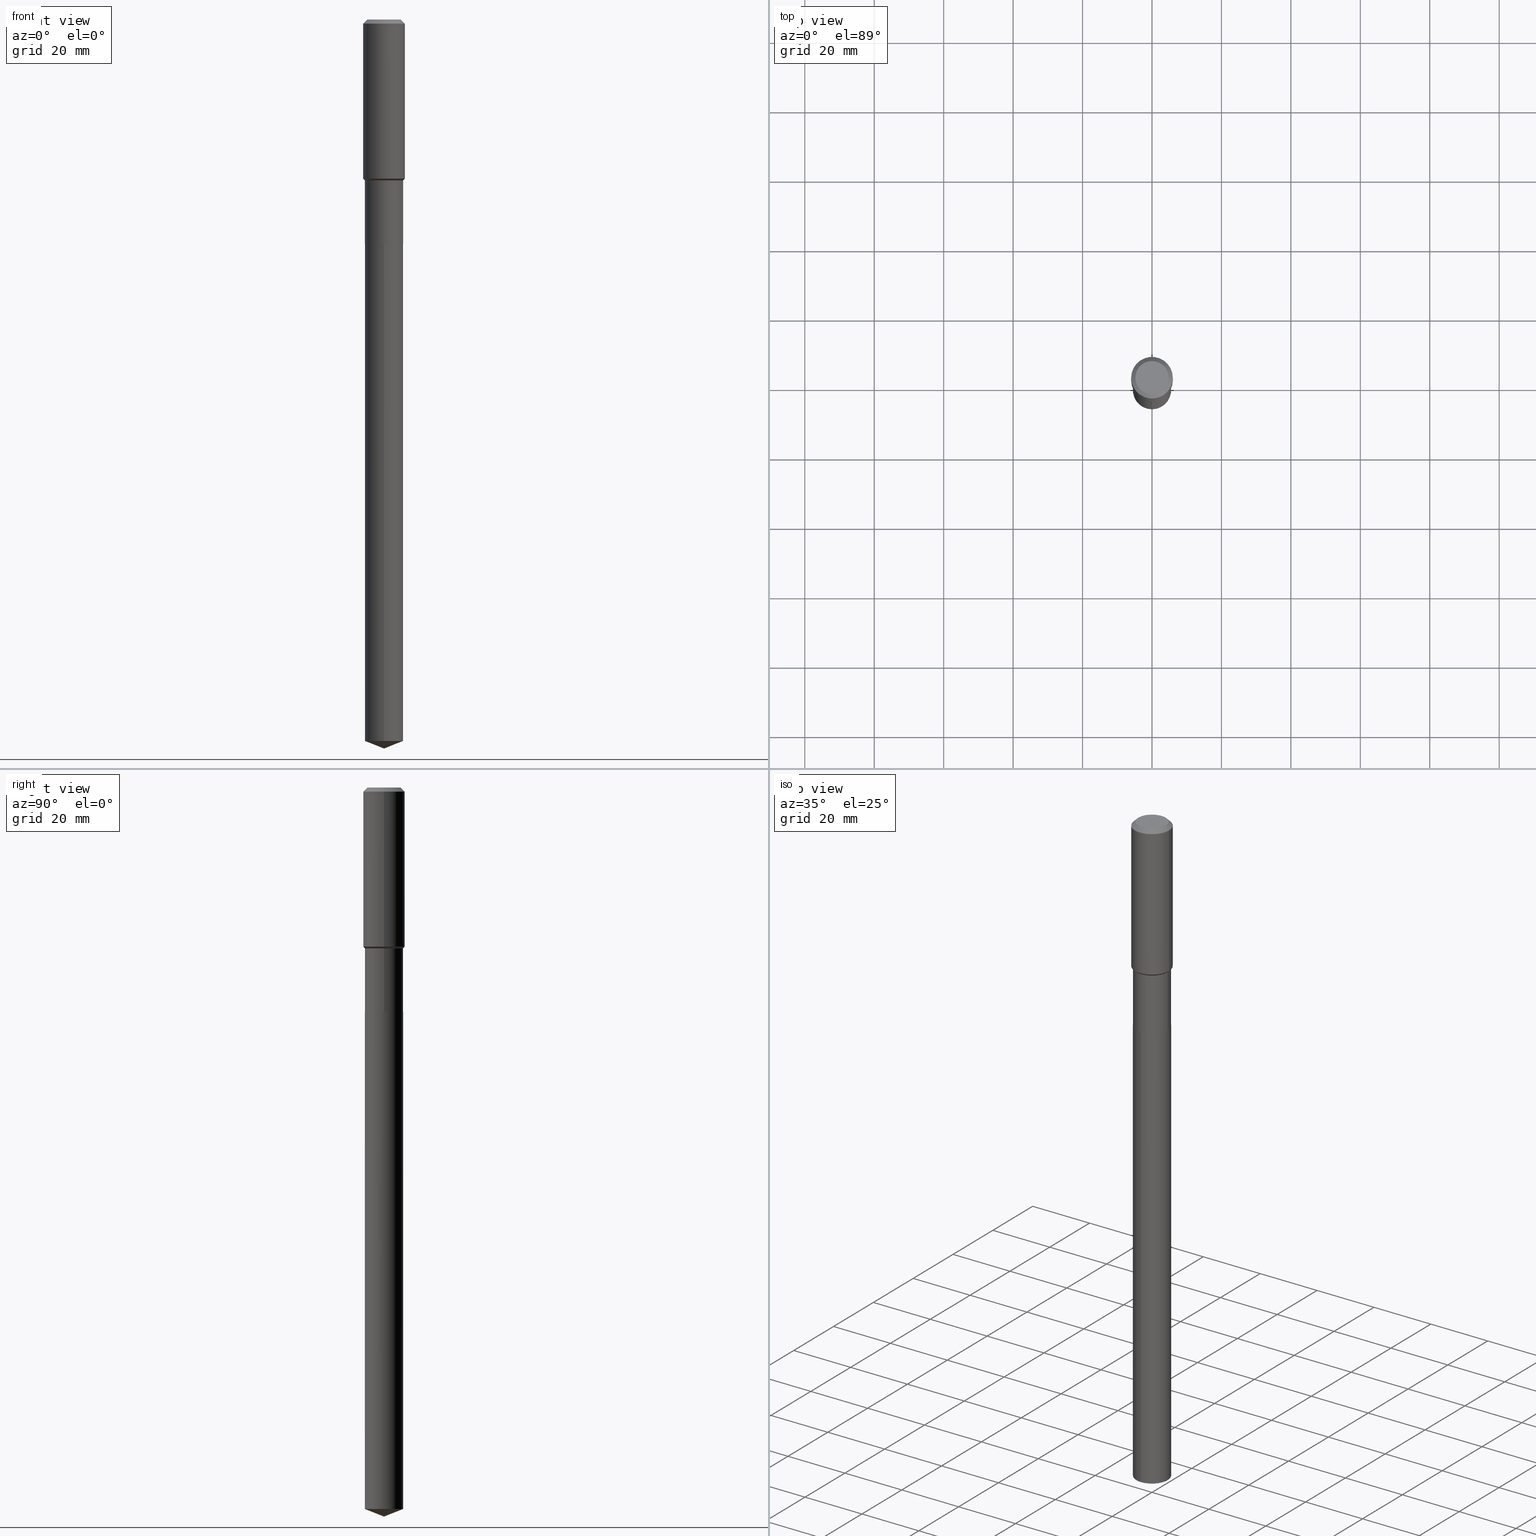
[diagram: canonical four-view strip — front | top / right | iso, engineering-drawing reading convention]
A machine part, canonical four-view strip (front | top / right | iso — engineering-drawing reading convention). The complete STEP part file that produces these views, byte-faithful:
ISO-10303-21;
HEADER;
FILE_DESCRIPTION (( 'STEP AP203' ),
    '1' );
FILE_NAME ('66789.STEP',
    '2024-04-25T06:17:26',
    ( '' ),
    ( '' ),
    'SwSTEP 2.0',
    'SolidWorks 2023',
    '' );
FILE_SCHEMA (( 'CONFIG_CONTROL_DESIGN' ));
ENDSEC;

DATA;
#1 = PERSON_AND_ORGANIZATION ( #345, #457 ) ;
#2 = CC_DESIGN_PERSON_AND_ORGANIZATION_ASSIGNMENT ( #183, #332, ( #416 ) ) ;
#3 = DIRECTION ( 'NONE',  ( -1.000000000000000000, 6.982962677686265922E-15, -4.876176775795935793E-29 ) ) ;
#4 = PERSON_AND_ORGANIZATION_ROLE ( 'classification_officer' ) ;
#5 = DIRECTION ( 'NONE',  ( 1.000000000000000000, -6.982962677686265922E-15, 4.876176775795935793E-29 ) ) ;
#6 = ADVANCED_FACE ( 'NONE', ( #219 ), #380, .T. ) ;
#7 = EDGE_CURVE ( 'NONE', #210, #172, #140, .T. ) ;
#8 = EDGE_LOOP ( 'NONE', ( #131, #297, #409, #239 ) ) ;
#9 = DATE_AND_TIME ( #198, #475 ) ;
#10 = DIRECTION ( 'NONE',  ( 0.7071067811864267805, -2.468850131080992517E-15, 0.7071067811866682540 ) ) ;
#11 = ORIENTED_EDGE ( 'NONE', *, *, #49, .F. ) ;
#12 = ORIENTED_EDGE ( 'NONE', *, *, #123, .F. ) ;
#13 = CARTESIAN_POINT ( 'NONE',  ( 1.155239464041865331E-30, -1.649375784469511612E-16, -0.04724000000000027483 ) ) ;
#14 = AXIS2_PLACEMENT_3D ( 'NONE', #22, #96, #348 ) ;
#15 = ORIENTED_EDGE ( 'NONE', *, *, #47, .T. ) ;
#16 = CARTESIAN_POINT ( 'NONE',  ( 4.462980571287875634E-29, -6.371953443388742039E-15, -1.825000000000000400 ) ) ;
#17 = PRODUCT_DEFINITION ( 'UNKNOWN', '', #416, #414 ) ;
#18 = DIRECTION ( 'NONE',  ( -2.445468806185136597E-29, 3.491481338843145583E-15, 1.000000000000000000 ) ) ;
#19 = ORIENTED_EDGE ( 'NONE', *, *, #65, .F. ) ;
#20 = FACE_OUTER_BOUND ( 'NONE', #8, .T. ) ;
#21 = ORIENTED_EDGE ( 'NONE', *, *, #240, .T. ) ;
#22 = CARTESIAN_POINT ( 'NONE',  ( 6.210757127068392441E-29, -8.867315156259937848E-15, -2.539700000000000291 ) ) ;
#23 = EDGE_CURVE ( 'NONE', #147, #55, #279, .T. ) ;
#24 = CIRCLE ( 'NONE', #377, 0.2165500000000000203 ) ;
#25 = LINE ( 'NONE', #221, #349 ) ;
#26 = CARTESIAN_POINT ( 'NONE',  ( -0.1889600000000000168, 1.401969416799070942E-15, 3.855188123706346622E-18 ) ) ;
#27 = DIRECTION ( 'NONE',  ( 1.000000000000000000, -6.982962677686266711E-15, 4.876176775795935793E-29 ) ) ;
#28 = DATE_TIME_ROLE ( 'creation_date' ) ;
#29 = CARTESIAN_POINT ( 'NONE',  ( 2.021924153099298608E-28, -2.886741752047122652E-14, -8.268000000000000682 ) ) ;
#30 = DIRECTION ( 'NONE',  ( -2.445468806185136597E-29, 3.491481338843145583E-15, 1.000000000000000000 ) ) ;
#31 = DATE_AND_TIME ( #374, #143 ) ;
#32 = CONICAL_SURFACE ( 'NONE', #440, 99.94676754583946376, 1.195550537616117737 ) ;
#33 = DIRECTION ( 'NONE',  ( 6.611014441532063434E-15, 0.9304175679820264611, 0.3665012267242921395 ) ) ;
#34 = VECTOR ( 'NONE', #58, 39.37007874015748143 ) ;
#35 = FACE_OUTER_BOUND ( 'NONE', #392, .T. ) ;
#36 = COORDINATED_UNIVERSAL_TIME_OFFSET ( 5, 0, .BEHIND. ) ;
#37 = FACE_OUTER_BOUND ( 'NONE', #454, .T. ) ;
#38 = PRODUCT ( '66789', '66789', '', ( #132 ) ) ;
#39 = CARTESIAN_POINT ( 'NONE',  ( 6.210757127068392441E-29, -8.867315156259937848E-15, -2.539700000000000291 ) ) ;
#40 = CARTESIAN_POINT ( 'NONE',  ( 0.2165500000000000203, -1.037772998344347638E-14, -2.539200000000000124 ) ) ;
#41 = FACE_OUTER_BOUND ( 'NONE', #464, .T. ) ;
#42 = PRODUCT_RELATED_PRODUCT_CATEGORY ( 'detail', '', ( #38 ) ) ;
#43 = CIRCLE ( 'NONE', #318, 0.2361999999999999933 ) ;
#44 = DIRECTION ( 'NONE',  ( 1.000000000000000000, -6.982962677686264344E-15, 0.000000000000000000 ) ) ;
#45 = CARTESIAN_POINT ( 'NONE',  ( 0.000000000000000000, 0.000000000000000000, 0.000000000000000000 ) ) ;
#46 = VERTEX_POINT ( 'NONE', #337 ) ;
#47 = EDGE_CURVE ( 'NONE', #147, #153, #363, .T. ) ;
#48 = ADVANCED_FACE ( 'NONE', ( #179 ), #334, .F. ) ;
#49 = EDGE_CURVE ( 'NONE', #172, #46, #73, .T. ) ;
#50 = FACE_OUTER_BOUND ( 'NONE', #134, .T. ) ;
#51 = EDGE_LOOP ( 'NONE', ( #326, #141, #102, #157 ) ) ;
#52 = CYLINDRICAL_SURFACE ( 'NONE', #180, 0.2165500000000000203 ) ;
#53 = CC_DESIGN_PERSON_AND_ORGANIZATION_ASSIGNMENT ( #282, #428, ( #38 ) ) ;
#54 = APPROVAL_PERSON_ORGANIZATION ( #261, #86, #224 ) ;
#55 = VERTEX_POINT ( 'NONE', #26 ) ;
#56 = LENGTH_MEASURE_WITH_UNIT ( LENGTH_MEASURE( 0.02539999999999999897 ), #214 );
#57 = VECTOR ( 'NONE', #10, 39.37007874015748143 ) ;
#58 = DIRECTION ( 'NONE',  ( -2.445481490809803865E-29, 3.491463173738657521E-15, 1.000000000000000000 ) ) ;
#59 = LOCAL_TIME ( 2, 17, 26.00000000000000000, #404 ) ;
#60 = ORIENTED_EDGE ( 'NONE', *, *, #342, .T. ) ;
#61 = CARTESIAN_POINT ( 'NONE',  ( -1.512160567852760255E-15, -0.2165500000000285252, -8.182698686505583296 ) ) ;
#62 = ORIENTED_EDGE ( 'NONE', *, *, #342, .F. ) ;
#63 = EDGE_CURVE ( 'NONE', #425, #320, #149, .T. ) ;
#64 = DIRECTION ( 'NONE',  ( -2.445468806185136597E-29, 3.491481338843145583E-15, 1.000000000000000000 ) ) ;
#65 = EDGE_CURVE ( 'NONE', #482, #139, #478, .T. ) ;
#66 = CARTESIAN_POINT ( 'NONE',  ( 6.210757127068392441E-29, -8.867315156259937848E-15, -2.539700000000000291 ) ) ;
#67 = CARTESIAN_POINT ( 'NONE',  ( 6.210757127068392441E-29, -8.867315156259937848E-15, -2.539700000000000291 ) ) ;
#68 = AXIS2_PLACEMENT_3D ( 'NONE', #360, #481, #27 ) ;
#69 = AXIS2_PLACEMENT_3D ( 'NONE', #369, #300, #3 ) ;
#70 = CARTESIAN_POINT ( 'NONE',  ( 0.2165499999999999647, -1.512160567852960823E-15, 1.055936080798609895E-29 ) ) ;
#71 = APPLICATION_CONTEXT ( 'configuration controlled 3d designs of mechanical parts and assemblies' ) ;
#72 = EDGE_CURVE ( 'NONE', #139, #467, #174, .T. ) ;
#73 = LINE ( 'NONE', #357, #423 ) ;
#74 = PERSON_AND_ORGANIZATION ( #345, #457 ) ;
#75 = CARTESIAN_POINT ( 'NONE',  ( -7.605959009990549560E-28, 1.085917164140639902E-13, 31.10207874015748430 ) ) ;
#76 = CALENDAR_DATE ( 2024, 25, 4 ) ;
#77 = AXIS2_PLACEMENT_3D ( 'NONE', #451, #92, #112 ) ;
#78 = DIRECTION ( 'NONE',  ( -0.7071067811864267805, 7.493145998869918709E-15, 0.7071067811866682540 ) ) ;
#79 = CARTESIAN_POINT ( 'NONE',  ( -0.2361999999999999933, 1.484438206022545019E-15, -0.04724000000000027483 ) ) ;
#80 = DIRECTION ( 'NONE',  ( -6.982962677686265133E-15, -1.000000000000000000, 5.046128826902356247E-15 ) ) ;
#81 = COORDINATED_UNIVERSAL_TIME_OFFSET ( 5, 0, .BEHIND. ) ;
#82 = DIRECTION ( 'NONE',  ( -2.445468806185136597E-29, 3.491481338843145583E-15, 1.000000000000000000 ) ) ;
#83 = VERTEX_POINT ( 'NONE', #328 ) ;
#84 = LOCAL_TIME ( 2, 17, 26.00000000000000000, #36 ) ;
#85 = AXIS2_PLACEMENT_3D ( 'NONE', #379, #315, #272 ) ;
#86 = APPROVAL ( #217, 'UNSPECIFIED' ) ;
#87 = LINE ( 'NONE', #133, #57 ) ;
#88 = ORIENTED_EDGE ( 'NONE', *, *, #170, .F. ) ;
#89 = VECTOR ( 'NONE', #230, 39.37007874015748143 ) ;
#90 = DIRECTION ( 'NONE',  ( -1.000000000000000000, 6.982962677686266711E-15, 0.000000000000000000 ) ) ;
#91 = ORIENTED_EDGE ( 'NONE', *, *, #234, .T. ) ;
#92 = DIRECTION ( 'NONE',  ( -2.445468806185136597E-29, 3.491481338843145583E-15, 1.000000000000000000 ) ) ;
#93 = ADVANCED_FACE ( 'NONE', ( #37 ), #237, .T. ) ;
#94 = CARTESIAN_POINT ( 'NONE',  ( -7.605959009990549560E-28, 1.085917164140639902E-13, 31.10207874015748430 ) ) ;
#95 = ORIENTED_EDGE ( 'NONE', *, *, #160, .F. ) ;
#96 = DIRECTION ( 'NONE',  ( -2.445481490809804145E-29, 3.491463173738657521E-15, 1.000000000000000000 ) ) ;
#97 = ORIENTED_EDGE ( 'NONE', *, *, #391, .T. ) ;
#98 = CIRCLE ( 'NONE', #205, 0.2165500000000000203 ) ;
#99 = DIRECTION ( 'NONE',  ( 1.000000000000000000, -6.982962677686267499E-15, 0.000000000000000000 ) ) ;
#100 = EDGE_LOOP ( 'NONE', ( #476, #88, #97, #354 ) ) ;
#101 =( CONVERSION_BASED_UNIT ( 'INCH', #56 ) LENGTH_UNIT ( ) NAMED_UNIT ( #427 ) );
#102 = ORIENTED_EDGE ( 'NONE', *, *, #489, .F. ) ;
#103 = DIRECTION ( 'NONE',  ( -6.497071151882115892E-15, -0.9304175679820240186, 0.3665012267242986899 ) ) ;
#104 = EDGE_CURVE ( 'NONE', #139, #46, #296, .T. ) ;
#105 = AXIS2_PLACEMENT_3D ( 'NONE', #155, #375, #313 ) ;
#106 = CIRCLE ( 'NONE', #388, 0.2165500000000000203 ) ;
#107 = DIRECTION ( 'NONE',  ( -0.7071067811865500152, 7.493145998870363626E-15, 0.7071067811865450192 ) ) ;
#108 = CALENDAR_DATE ( 2024, 25, 4 ) ;
#109 = DIRECTION ( 'NONE',  ( 1.000000000000000000, -6.982962677686266711E-15, 4.876185090822587894E-29 ) ) ;
#110 = LINE ( 'NONE', #303, #356 ) ;
#111 = PERSON_AND_ORGANIZATION ( #345, #457 ) ;
#112 = DIRECTION ( 'NONE',  ( 1.000000000000000000, -6.982962677686266711E-15, 4.876176775795935793E-29 ) ) ;
#113 = CARTESIAN_POINT ( 'NONE',  ( -9.427742298522546243E-47, 1.346031739168365344E-32, 3.855188123715862256E-18 ) ) ;
#114 = CC_DESIGN_DATE_AND_TIME_ASSIGNMENT ( #442, #370, ( #173 ) ) ;
#115 = FACE_OUTER_BOUND ( 'NONE', #402, .T. ) ;
#116 = ORIENTED_EDGE ( 'NONE', *, *, #72, .F. ) ;
#117 = CYLINDRICAL_SURFACE ( 'NONE', #244, 0.2165499999999999647 ) ;
#118 = ORIENTED_EDGE ( 'NONE', *, *, #276, .F. ) ;
#119 = AXIS2_PLACEMENT_3D ( 'NONE', #471, #466, #99 ) ;
#120 = DIRECTION ( 'NONE',  ( 1.000000000000000000, -6.982962677686266711E-15, 4.876176775795936353E-29 ) ) ;
#121 = DIRECTION ( 'NONE',  ( 1.000000000000000000, -6.982962677686266711E-15, 4.876185090822587894E-29 ) ) ;
#122 = AXIS2_PLACEMENT_3D ( 'NONE', #252, #472, #398 ) ;
#123 = EDGE_CURVE ( 'NONE', #83, #470, #110, .T. ) ;
#124 = CARTESIAN_POINT ( 'NONE',  ( -0.2165499999999999647, 1.538680294288496702E-15, -1.065195393794699783E-29 ) ) ;
#125 = ORIENTED_EDGE ( 'NONE', *, *, #225, .F. ) ;
#126 = DIRECTION ( 'NONE',  ( -6.982962677686265133E-15, -1.000000000000000000, 2.523064413451178124E-15 ) ) ;
#127 = EDGE_LOOP ( 'NONE', ( #250, #194 ) ) ;
#128 = CIRCLE ( 'NONE', #400, 0.2160500000000000198 ) ;
#129 = CC_DESIGN_PERSON_AND_ORGANIZATION_ASSIGNMENT ( #444, #483, ( #416 ) ) ;
#130 = DIRECTION ( 'NONE',  ( -2.445481490809804145E-29, 3.491463173738657521E-15, 1.000000000000000000 ) ) ;
#131 = ORIENTED_EDGE ( 'NONE', *, *, #322, .F. ) ;
#132 = MECHANICAL_CONTEXT ( 'NONE', #262, 'mechanical' ) ;
#133 = CARTESIAN_POINT ( 'NONE',  ( 0.2160500000000000198, -1.037598424277405566E-14, -2.539700000000000291 ) ) ;
#134 = EDGE_LOOP ( 'NONE', ( #309, #287, #197, #11 ) ) ;
#135 = ADVANCED_FACE ( 'NONE', ( #263 ), #417, .T. ) ;
#136 = EDGE_LOOP ( 'NONE', ( #62, #376, #397 ) ) ;
#137 = AXIS2_PLACEMENT_3D ( 'NONE', #308, #232, #121 ) ;
#138 = FACE_OUTER_BOUND ( 'NONE', #127, .T. ) ;
#139 = VERTEX_POINT ( 'NONE', #216 ) ;
#140 = LINE ( 'NONE', #70, #456 ) ;
#141 = ORIENTED_EDGE ( 'NONE', *, *, #322, .T. ) ;
#142 = CARTESIAN_POINT ( 'NONE',  ( 0.2361999999999999933, -1.814313362916447440E-15, -0.04724000000000027483 ) ) ;
#143 = LOCAL_TIME ( 2, 17, 26.00000000000000000, #407 ) ;
#144 = ORIENTED_EDGE ( 'NONE', *, *, #23, .T. ) ;
#145 = DIRECTION ( 'NONE',  ( -2.445468806185136597E-29, 3.491481338843145583E-15, 1.000000000000000000 ) ) ;
#146 = CARTESIAN_POINT ( 'NONE',  ( 6.210757127068392441E-29, -8.867315156259937848E-15, -2.539700000000000291 ) ) ;
#147 = VERTEX_POINT ( 'NONE', #448 ) ;
#148 = ADVANCED_FACE ( 'NONE', ( #222 ), #366, .T. ) ;
#149 = LINE ( 'NONE', #182, #187 ) ;
#150 = AXIS2_PLACEMENT_3D ( 'NONE', #75, #253, #401 ) ;
#151 = EDGE_CURVE ( 'NONE', #153, #467, #449, .T. ) ;
#152 = DIRECTION ( 'NONE',  ( -2.445468806185136597E-29, 3.491481338843145583E-15, 1.000000000000000000 ) ) ;
#153 = VERTEX_POINT ( 'NONE', #142 ) ;
#154 = CIRCLE ( 'NONE', #431, 0.2160500000000000198 ) ;
#155 = CARTESIAN_POINT ( 'NONE',  ( 4.462980571287875634E-29, -6.371953443388742039E-15, -1.825000000000000400 ) ) ;
#156 = CIRCLE ( 'NONE', #14, 0.2165500000000000203 ) ;
#157 = ORIENTED_EDGE ( 'NONE', *, *, #331, .F. ) ;
#158 = ADVANCED_FACE ( 'NONE', ( #35 ), #490, .F. ) ;
#159 = DIRECTION ( 'NONE',  ( -2.445481490809804145E-29, 3.491463173738657521E-15, 1.000000000000000000 ) ) ;
#160 = EDGE_CURVE ( 'NONE', #172, #482, #226, .T. ) ;
#161 = ORIENTED_EDGE ( 'NONE', *, *, #445, .F. ) ;
#162 = CARTESIAN_POINT ( 'NONE',  ( 2.001060596758183764E-28, -2.856963725964980633E-14, -8.182698686505585073 ) ) ;
#163 = ORIENTED_EDGE ( 'NONE', *, *, #234, .F. ) ;
#164 = AXIS2_PLACEMENT_3D ( 'NONE', #248, #167, #438 ) ;
#165 =( NAMED_UNIT ( * ) PLANE_ANGLE_UNIT ( ) SI_UNIT ( $, .RADIAN. ) );
#166 = EDGE_LOOP ( 'NONE', ( #21, #246, #95, #384 ) ) ;
#167 = DIRECTION ( 'NONE',  ( -2.445468806185136597E-29, 3.491481338843145583E-15, 1.000000000000000000 ) ) ;
#168 = EDGE_LOOP ( 'NONE', ( #12, #60, #125 ) ) ;
#169 = DIRECTION ( 'NONE',  ( -6.982962677686265133E-15, -1.000000000000000000, 2.523064413451178124E-15 ) ) ;
#170 = EDGE_CURVE ( 'NONE', #55, #147, #254, .T. ) ;
#171 = FACE_OUTER_BOUND ( 'NONE', #168, .T. ) ;
#172 = VERTEX_POINT ( 'NONE', #193 ) ;
#173 = SECURITY_CLASSIFICATION ( '', '', #299 ) ;
#174 = LINE ( 'NONE', #443, #340 ) ;
#175 = APPLICATION_PROTOCOL_DEFINITION ( 'international standard', 'config_control_design', 1994, #262 ) ;
#176 = CARTESIAN_POINT ( 'NONE',  ( 1.155239464041865331E-30, -1.649375784469511612E-16, -0.04724000000000027483 ) ) ;
#177 = UNCERTAINTY_MEASURE_WITH_UNIT (LENGTH_MEASURE( 1.000000000000000082E-05 ), #101, 'distance_accuracy_value', 'NONE');
#178 = APPROVAL_DATE_TIME ( #361, #86 ) ;
#179 = FACE_OUTER_BOUND ( 'NONE', #281, .T. ) ;
#180 = AXIS2_PLACEMENT_3D ( 'NONE', #201, #447, #266 ) ;
#181 = CLOSED_SHELL ( 'NONE', ( #6, #259, #148, #264, #415, #364, #93, #371, #184, #48, #158, #399 ) ) ;
#182 = CARTESIAN_POINT ( 'NONE',  ( -0.2160500000000000198, -7.332187575650240861E-15, -2.539700000000000291 ) ) ;
#183 = PERSON_AND_ORGANIZATION ( #345, #457 ) ;
#184 = ADVANCED_FACE ( 'NONE', ( #275 ), #439, .T. ) ;
#185 = DIRECTION ( 'NONE',  ( -2.438088387897960049E-29, 3.491481338843145188E-15, 1.000000000000000000 ) ) ;
#186 = LINE ( 'NONE', #124, #265 ) ;
#187 = VECTOR ( 'NONE', #78, 39.37007874015748143 ) ;
#188 = LINE ( 'NONE', #79, #389 ) ;
#189 = AXIS2_PLACEMENT_3D ( 'NONE', #343, #469, #90 ) ;
#190 = DIRECTION ( 'NONE',  ( -2.445468806185136597E-29, 3.491481338843145583E-15, 1.000000000000000000 ) ) ;
#191 = FACE_OUTER_BOUND ( 'NONE', #249, .T. ) ;
#192 = AXIS2_PLACEMENT_3D ( 'NONE', #66, #145, #302 ) ;
#193 = CARTESIAN_POINT ( 'NONE',  ( 0.2165499999999999092, -7.884114011241702862E-15, -1.825000000000000400 ) ) ;
#194 = ORIENTED_EDGE ( 'NONE', *, *, #310, .T. ) ;
#195 = CC_DESIGN_DATE_AND_TIME_ASSIGNMENT ( #413, #28, ( #17 ) ) ;
#196 = CARTESIAN_POINT ( 'NONE',  ( 6.210757127068392441E-29, -8.867315156259937848E-15, -2.539700000000000291 ) ) ;
#197 = ORIENTED_EDGE ( 'NONE', *, *, #459, .F. ) ;
#198 = CALENDAR_DATE ( 2024, 25, 4 ) ;
#199 = LINE ( 'NONE', #346, #34 ) ;
#200 = ORIENTED_EDGE ( 'NONE', *, *, #453, .F. ) ;
#201 = CARTESIAN_POINT ( 'NONE',  ( 6.210757127068392441E-29, -8.867315156259937848E-15, -2.539700000000000291 ) ) ;
#202 = AXIS2_PLACEMENT_3D ( 'NONE', #435, #291, #169 ) ;
#203 = VECTOR ( 'NONE', #107, 39.37007874015748143 ) ;
#204 = EDGE_LOOP ( 'NONE', ( #479, #341, #269, #163 ) ) ;
#205 = AXIS2_PLACEMENT_3D ( 'NONE', #162, #130, #316 ) ;
#206 = FACE_OUTER_BOUND ( 'NONE', #166, .T. ) ;
#207 = ORIENTED_EDGE ( 'NONE', *, *, #170, .T. ) ;
#208 = DIRECTION ( 'NONE',  ( 1.000000000000000000, -6.982962677686266711E-15, 0.000000000000000000 ) ) ;
#209 = EDGE_CURVE ( 'NONE', #320, #482, #186, .T. ) ;
#210 = VERTEX_POINT ( 'NONE', #40 ) ;
#211 = CARTESIAN_POINT ( 'NONE',  ( 6.210757127068392441E-29, -8.867315156259937848E-15, -2.539700000000000291 ) ) ;
#212 = DIRECTION ( 'NONE',  ( -2.445468806185136877E-29, 3.491481338843145188E-15, 1.000000000000000000 ) ) ;
#213 = CIRCLE ( 'NONE', #227, 0.2165500000000000203 ) ;
#214 =( LENGTH_UNIT ( ) NAMED_UNIT ( * ) SI_UNIT ( $, .METRE. ) );
#215 = CC_DESIGN_SECURITY_CLASSIFICATION ( #173, ( #416 ) ) ;
#216 = CARTESIAN_POINT ( 'NONE',  ( -0.2362000000000002153, -4.625043893215115427E-15, -1.805350000000000232 ) ) ;
#217 = APPROVAL_STATUS ( 'not_yet_approved' ) ;
#218 = ADVANCED_BREP_SHAPE_REPRESENTATION ( '66789', ( #410, #236, #487 ), #298 ) ;
#219 = FACE_OUTER_BOUND ( 'NONE', #393, .T. ) ;
#220 = APPROVAL_ROLE ( '' ) ;
#221 = CARTESIAN_POINT ( 'NONE',  ( -1.512160567852898700E-15, -0.2165500000000088743, -2.539699999999999847 ) ) ;
#222 = FACE_OUTER_BOUND ( 'NONE', #204, .T. ) ;
#223 = CIRCLE ( 'NONE', #294, 0.2165500000000000203 ) ;
#224 = APPROVAL_ROLE ( '' ) ;
#225 = EDGE_CURVE ( 'NONE', #470, #429, #24, .T. ) ;
#226 = CIRCLE ( 'NONE', #105, 0.2165499999999999092 ) ;
#227 = AXIS2_PLACEMENT_3D ( 'NONE', #268, #190, #44 ) ;
#228 = DIRECTION ( 'NONE',  ( 0.7071067811865453523, -7.319954787623248157E-15, -0.7071067811865496822 ) ) ;
#229 = LOCAL_TIME ( 2, 17, 26.00000000000000000, #81 ) ;
#230 = DIRECTION ( 'NONE',  ( -2.445468806185136877E-29, 3.491481338843145188E-15, 1.000000000000000000 ) ) ;
#231 = PRODUCT_DEFINITION_SHAPE ( 'NONE', 'NONE',  #17 ) ;
#232 = DIRECTION ( 'NONE',  ( -2.445468806185136597E-29, 3.491481338843145583E-15, 1.000000000000000000 ) ) ;
#233 = AXIS2_PLACEMENT_3D ( 'NONE', #67, #355, #468 ) ;
#234 = EDGE_CURVE ( 'NONE', #46, #153, #339, .T. ) ;
#235 = SHAPE_DEFINITION_REPRESENTATION ( #231, #218 ) ;
#236 = MANIFOLD_SOLID_BREP ( 'Body-Move/Copy2[2]', #181 ) ;
#237 = CONICAL_SURFACE ( 'NONE', #311, 0.2165499999999999092, 0.7853981633974518317 ) ;
#238 = APPROVAL_PERSON_ORGANIZATION ( #74, #277, #336 ) ;
#239 = ORIENTED_EDGE ( 'NONE', *, *, #310, .F. ) ;
#240 = EDGE_CURVE ( 'NONE', #210, #320, #213, .T. ) ;
#241 = DIRECTION ( 'NONE',  ( 1.000000000000000000, -6.982962677686264344E-15, 0.000000000000000000 ) ) ;
#242 = ORIENTED_EDGE ( 'NONE', *, *, #240, .F. ) ;
#243 = DIRECTION ( 'NONE',  ( 1.000000000000000000, -6.982962677686266711E-15, 0.000000000000000000 ) ) ;
#244 = AXIS2_PLACEMENT_3D ( 'NONE', #45, #152, #120 ) ;
#245 = VECTOR ( 'NONE', #228, 39.37007874015748143 ) ;
#246 = ORIENTED_EDGE ( 'NONE', *, *, #209, .T. ) ;
#247 = APPROVAL_PERSON_ORGANIZATION ( #111, #290, #220 ) ;
#248 = CARTESIAN_POINT ( 'NONE',  ( 4.414927109246337168E-29, -6.303345835080474188E-15, -1.805350000000000232 ) ) ;
#249 = EDGE_LOOP ( 'NONE', ( #317, #421, #352, #200 ) ) ;
#250 = ORIENTED_EDGE ( 'NONE', *, *, #489, .T. ) ;
#251 = ADVANCED_FACE ( 'NONE', ( #171 ), #32, .T. ) ;
#252 = CARTESIAN_POINT ( 'NONE',  ( 0.000000000000000000, 0.000000000000000000, 0.000000000000000000 ) ) ;
#253 = DIRECTION ( 'NONE',  ( -2.445481490809804145E-29, 3.491463173738657521E-15, 1.000000000000000000 ) ) ;
#254 = CIRCLE ( 'NONE', #137, 0.1889600000000000168 ) ;
#255 = ORIENTED_EDGE ( 'NONE', *, *, #104, .F. ) ;
#256 = DIRECTION ( 'NONE',  ( 0.000000000000000000, 0.000000000000000000, 1.000000000000000000 ) ) ;
#257 = DIRECTION ( 'NONE',  ( -2.445468806185136597E-29, 3.491481338843145583E-15, 1.000000000000000000 ) ) ;
#258 = PERSON_AND_ORGANIZATION ( #345, #457 ) ;
#259 = ADVANCED_FACE ( 'NONE', ( #474 ), #418, .T. ) ;
#260 = DIRECTION ( 'NONE',  ( 0.7071067811865500152, -2.468850131082282699E-15, 0.7071067811865450192 ) ) ;
#261 = PERSON_AND_ORGANIZATION ( #345, #457 ) ;
#262 = APPLICATION_CONTEXT ( 'configuration controlled 3d designs of mechanical parts and assemblies' ) ;
#263 = FACE_OUTER_BOUND ( 'NONE', #136, .T. ) ;
#264 = ADVANCED_FACE ( 'NONE', ( #50 ), #333, .T. ) ;
#265 = VECTOR ( 'NONE', #460, 39.37007874015748143 ) ;
#266 = DIRECTION ( 'NONE',  ( -6.982962677686265133E-15, -1.000000000000000000, 2.523064413451178124E-15 ) ) ;
#267 = DIRECTION ( 'NONE',  ( 1.000000000000000000, -6.982962677686266711E-15, 0.000000000000000000 ) ) ;
#268 = CARTESIAN_POINT ( 'NONE',  ( 6.209534392665298518E-29, -8.865569415590515556E-15, -2.539200000000000124 ) ) ;
#269 = ORIENTED_EDGE ( 'NONE', *, *, #151, .F. ) ;
#270 = APPROVAL_DATE_TIME ( #31, #290 ) ;
#271 = EDGE_CURVE ( 'NONE', #320, #210, #106, .T. ) ;
#272 = DIRECTION ( 'NONE',  ( -1.000000000000000000, 6.982962677686266711E-15, 0.000000000000000000 ) ) ;
#273 = ORIENTED_EDGE ( 'NONE', *, *, #305, .T. ) ;
#274 = CLOSED_SHELL ( 'NONE', ( #382, #251, #135, #477, #461 ) ) ;
#275 = FACE_OUTER_BOUND ( 'NONE', #100, .T. ) ;
#276 = EDGE_CURVE ( 'NONE', #386, #210, #87, .T. ) ;
#277 = APPROVAL ( #365, 'UNSPECIFIED' ) ;
#278 = ORIENTED_EDGE ( 'NONE', *, *, #391, .F. ) ;
#279 = CIRCLE ( 'NONE', #286, 0.1889600000000000168 ) ;
#280 = ORIENTED_EDGE ( 'NONE', *, *, #151, .T. ) ;
#281 = EDGE_LOOP ( 'NONE', ( #207, #144 ) ) ;
#282 = PERSON_AND_ORGANIZATION ( #345, #457 ) ;
#283 = ORIENTED_EDGE ( 'NONE', *, *, #49, .T. ) ;
#284 = CYLINDRICAL_SURFACE ( 'NONE', #122, 0.2165499999999999647 ) ;
#285 = AXIS2_PLACEMENT_3D ( 'NONE', #39, #82, #267 ) ;
#286 = AXIS2_PLACEMENT_3D ( 'NONE', #113, #30, #109 ) ;
#287 = ORIENTED_EDGE ( 'NONE', *, *, #65, .T. ) ;
#288 = DIRECTION ( 'NONE',  ( -2.445468806185136597E-29, 3.491481338843145583E-15, 1.000000000000000000 ) ) ;
#289 = ORIENTED_EDGE ( 'NONE', *, *, #271, .F. ) ;
#290 = APPROVAL ( #452, 'UNSPECIFIED' ) ;
#291 = DIRECTION ( 'NONE',  ( -2.445481490809804145E-29, 3.491463173738657521E-15, 1.000000000000000000 ) ) ;
#292 = CARTESIAN_POINT ( 'NONE',  ( 4.462980571287875634E-29, -6.371953443388742039E-15, -1.825000000000000400 ) ) ;
#293 = DIRECTION ( 'NONE',  ( -2.445468806185136597E-29, 3.491481338843145583E-15, 1.000000000000000000 ) ) ;
#294 = AXIS2_PLACEMENT_3D ( 'NONE', #390, #463, #126 ) ;
#295 = DIRECTION ( 'NONE',  ( -2.445468806185136597E-29, 3.491481338843145583E-15, 1.000000000000000000 ) ) ;
#296 = CIRCLE ( 'NONE', #473, 0.2362000000000002153 ) ;
#297 = ORIENTED_EDGE ( 'NONE', *, *, #307, .T. ) ;
#298 =( GEOMETRIC_REPRESENTATION_CONTEXT ( 3 ) GLOBAL_UNCERTAINTY_ASSIGNED_CONTEXT ( ( #177 ) ) GLOBAL_UNIT_ASSIGNED_CONTEXT ( ( #101, #165, #394 ) ) REPRESENTATION_CONTEXT ( 'NONE', 'WORKASPACE' ) );
#299 = SECURITY_CLASSIFICATION_LEVEL ( 'unclassified' ) ;
#300 = DIRECTION ( 'NONE',  ( 2.438088387897960049E-29, -3.491481338843145188E-15, -1.000000000000000000 ) ) ;
#301 = COORDINATED_UNIVERSAL_TIME_OFFSET ( 5, 0, .BEHIND. ) ;
#302 = DIRECTION ( 'NONE',  ( 1.000000000000000000, -6.982962677686266711E-15, 0.000000000000000000 ) ) ;
#303 = CARTESIAN_POINT ( 'NONE',  ( 2.021917653573292654E-28, -2.886750978830296102E-14, -8.268000000000000682 ) ) ;
#304 = CARTESIAN_POINT ( 'NONE',  ( 0.2362000000000001043, -1.649375784469496920E-15, 1.151752954443000508E-29 ) ) ;
#305 = EDGE_CURVE ( 'NONE', #386, #425, #154, .T. ) ;
#306 = APPLICATION_PROTOCOL_DEFINITION ( 'international standard', 'config_control_design', 1994, #71 ) ;
#307 = EDGE_CURVE ( 'NONE', #429, #470, #98, .T. ) ;
#308 = CARTESIAN_POINT ( 'NONE',  ( -9.427742298522546243E-47, 1.346031739168365344E-32, 3.855188123715862256E-18 ) ) ;
#309 = ORIENTED_EDGE ( 'NONE', *, *, #160, .T. ) ;
#310 = EDGE_CURVE ( 'NONE', #323, #324, #223, .T. ) ;
#311 = AXIS2_PLACEMENT_3D ( 'NONE', #292, #295, #405 ) ;
#312 = CIRCLE ( 'NONE', #455, 0.2165499999999999092 ) ;
#313 = DIRECTION ( 'NONE',  ( 1.000000000000000000, -6.982962677686267499E-15, 0.000000000000000000 ) ) ;
#314 = EDGE_LOOP ( 'NONE', ( #426, #15, #280, #278 ) ) ;
#315 = DIRECTION ( 'NONE',  ( 2.445468806185136597E-29, -3.491481338843145583E-15, -1.000000000000000000 ) ) ;
#316 = DIRECTION ( 'NONE',  ( -6.982962677686265133E-15, -1.000000000000000000, 5.046128826902356247E-15 ) ) ;
#317 = ORIENTED_EDGE ( 'NONE', *, *, #209, .F. ) ;
#318 = AXIS2_PLACEMENT_3D ( 'NONE', #13, #288, #208 ) ;
#319 = CARTESIAN_POINT ( 'NONE',  ( 1.538680294288697861E-15, 0.2165499999999911385, -2.539700000000000735 ) ) ;
#320 = VERTEX_POINT ( 'NONE', #383 ) ;
#321 = DIRECTION ( 'NONE',  ( 1.000000000000000000, 0.000000000000000000, 0.000000000000000000 ) ) ;
#322 = EDGE_CURVE ( 'NONE', #429, #323, #199, .T. ) ;
#323 = VERTEX_POINT ( 'NONE', #319 ) ;
#324 = VERTEX_POINT ( 'NONE', #396 ) ;
#325 = DIRECTION ( 'NONE',  ( -2.445468806185136597E-29, 3.491481338843145583E-15, 1.000000000000000000 ) ) ;
#326 = ORIENTED_EDGE ( 'NONE', *, *, #225, .T. ) ;
#327 = CC_DESIGN_APPROVAL ( #277, ( #173 ) ) ;
#328 = CARTESIAN_POINT ( 'NONE',  ( 2.021924096601546233E-28, -2.886741752047122652E-14, -8.268000000000000682 ) ) ;
#329 = CARTESIAN_POINT ( 'NONE',  ( 0.000000000000000000, 0.000000000000000000, 0.000000000000000000 ) ) ;
#330 = DIRECTION ( 'NONE',  ( -2.445468806185136597E-29, 3.491481338843145583E-15, 1.000000000000000000 ) ) ;
#331 = EDGE_CURVE ( 'NONE', #470, #324, #25, .T. ) ;
#332 = PERSON_AND_ORGANIZATION_ROLE ( 'creator' ) ;
#333 = CONICAL_SURFACE ( 'NONE', #119, 0.2165499999999999092, 0.7853981633974518317 ) ;
#334 = PLANE ( 'NONE',  #69 ) ;
#335 = CONICAL_SURFACE ( 'NONE', #285, 0.2160500000000000198, 0.7853981633972775267 ) ;
#336 = APPROVAL_ROLE ( '' ) ;
#337 = CARTESIAN_POINT ( 'NONE',  ( 0.2362000000000002153, -7.952721619549971502E-15, -1.805350000000000232 ) ) ;
#338 = DIRECTION ( 'NONE',  ( 1.000000000000000000, -6.982962677686266711E-15, 0.000000000000000000 ) ) ;
#339 = LINE ( 'NONE', #304, #89 ) ;
#340 = VECTOR ( 'NONE', #446, 39.37007874015748143 ) ;
#341 = ORIENTED_EDGE ( 'NONE', *, *, #72, .T. ) ;
#342 = EDGE_CURVE ( 'NONE', #83, #429, #485, .T. ) ;
#343 = CARTESIAN_POINT ( 'NONE',  ( 1.155239464041865331E-30, -1.649375784469511612E-16, -0.04724000000000027483 ) ) ;
#344 = ORIENTED_EDGE ( 'NONE', *, *, #276, .T. ) ;
#345 = PERSON ( 'UNSPECIFIED', 'UNSPECIFIED', 'UNSPECIFIED', ('UNSPECIFIED'), ('UNSPECIFIED'), ('UNSPECIFIED') ) ;
#346 = CARTESIAN_POINT ( 'NONE',  ( 1.538680294288558825E-15, 0.2165499999999911385, -2.539700000000000735 ) ) ;
#347 = ORIENTED_EDGE ( 'NONE', *, *, #63, .T. ) ;
#348 = DIRECTION ( 'NONE',  ( -6.982962677686265133E-15, -1.000000000000000000, 2.523064413451178124E-15 ) ) ;
#349 = VECTOR ( 'NONE', #362, 39.37007874015748143 ) ;
#350 = ORIENTED_EDGE ( 'NONE', *, *, #305, .F. ) ;
#351 = CARTESIAN_POINT ( 'NONE',  ( -0.2165499999999999092, -6.080081135201131701E-15, -1.825000000000000400 ) ) ;
#352 = ORIENTED_EDGE ( 'NONE', *, *, #7, .T. ) ;
#353 = PLANE ( 'NONE',  #233 ) ;
#354 = ORIENTED_EDGE ( 'NONE', *, *, #445, .T. ) ;
#355 = DIRECTION ( 'NONE',  ( 2.445481490809803865E-29, -3.491463173738657521E-15, -1.000000000000000000 ) ) ;
#356 = VECTOR ( 'NONE', #103, 39.37007874015748854 ) ;
#357 = CARTESIAN_POINT ( 'NONE',  ( 0.2165499999999999092, -7.884114011241702862E-15, -1.825000000000000400 ) ) ;
#358 = CC_DESIGN_APPROVAL ( #86, ( #416 ) ) ;
#359 = CARTESIAN_POINT ( 'NONE',  ( -0.2160500000000000198, -7.329538348476128871E-15, -2.539700000000000291 ) ) ;
#360 = CARTESIAN_POINT ( 'NONE',  ( 0.000000000000000000, 0.000000000000000000, 0.000000000000000000 ) ) ;
#361 = DATE_AND_TIME ( #76, #229 ) ;
#362 = DIRECTION ( 'NONE',  ( -2.445481490809803865E-29, 3.491463173738657521E-15, 1.000000000000000000 ) ) ;
#363 = LINE ( 'NONE', #441, #245 ) ;
#364 = ADVANCED_FACE ( 'NONE', ( #191 ), #117, .T. ) ;
#365 = APPROVAL_STATUS ( 'not_yet_approved' ) ;
#366 = CYLINDRICAL_SURFACE ( 'NONE', #68, 0.2362000000000001043 ) ;
#367 = VECTOR ( 'NONE', #33, 39.37007874015748143 ) ;
#368 = PERSON_AND_ORGANIZATION_ROLE ( 'creator' ) ;
#369 = CARTESIAN_POINT ( 'NONE',  ( -4.713871149261273121E-47, 6.730158695841826722E-33, 1.927594061857931128E-18 ) ) ;
#370 = DATE_TIME_ROLE ( 'classification_date' ) ;
#371 = ADVANCED_FACE ( 'NONE', ( #41 ), #458, .T. ) ;
#372 = DIRECTION ( 'NONE',  ( -0.7071067811865453523, 2.468850131082234184E-15, -0.7071067811865496822 ) ) ;
#373 = DIRECTION ( 'NONE',  ( -2.445481490809804145E-29, 3.491463173738657521E-15, 1.000000000000000000 ) ) ;
#374 = CALENDAR_DATE ( 2024, 25, 4 ) ;
#375 = DIRECTION ( 'NONE',  ( -2.445468806185136597E-29, 3.491481338843145583E-15, 1.000000000000000000 ) ) ;
#376 = ORIENTED_EDGE ( 'NONE', *, *, #123, .T. ) ;
#377 = AXIS2_PLACEMENT_3D ( 'NONE', #412, #373, #80 ) ;
#378 = CIRCLE ( 'NONE', #164, 0.2362000000000002153 ) ;
#379 = CARTESIAN_POINT ( 'NONE',  ( 1.155239464041865331E-30, -1.649375784469511612E-16, -0.04724000000000027483 ) ) ;
#380 = CONICAL_SURFACE ( 'NONE', #192, 0.2160500000000000198, 0.7853981633972775267 ) ;
#381 = DIRECTION ( 'NONE',  ( -6.982962677686266711E-15, -1.000000000000000000, 3.498627837350021972E-15 ) ) ;
#382 = ADVANCED_FACE ( 'NONE', ( #385 ), #52, .T. ) ;
#383 = CARTESIAN_POINT ( 'NONE',  ( -0.2165500000000000203, -6.080081135201130912E-15, -2.539200000000000124 ) ) ;
#384 = ORIENTED_EDGE ( 'NONE', *, *, #7, .F. ) ;
#385 = FACE_OUTER_BOUND ( 'NONE', #51, .T. ) ;
#386 = VERTEX_POINT ( 'NONE', #411 ) ;
#387 = CARTESIAN_POINT ( 'NONE',  ( -0.2361999999999999933, -1.555839764898354974E-15, -0.04724000000000027483 ) ) ;
#388 = AXIS2_PLACEMENT_3D ( 'NONE', #420, #325, #241 ) ;
#389 = VECTOR ( 'NONE', #372, 39.37007874015748143 ) ;
#390 = CARTESIAN_POINT ( 'NONE',  ( 6.210757127068392441E-29, -8.867315156259937848E-15, -2.539700000000000291 ) ) ;
#391 = EDGE_CURVE ( 'NONE', #55, #467, #188, .T. ) ;
#392 = EDGE_LOOP ( 'NONE', ( #350, #403 ) ) ;
#393 = EDGE_LOOP ( 'NONE', ( #273, #347, #242, #118 ) ) ;
#394 =( NAMED_UNIT ( * ) SI_UNIT ( $, .STERADIAN. ) SOLID_ANGLE_UNIT ( ) );
#395 = CC_DESIGN_PERSON_AND_ORGANIZATION_ASSIGNMENT ( #1, #4, ( #173 ) ) ;
#396 = CARTESIAN_POINT ( 'NONE',  ( -1.512160567852898700E-15, -0.2165500000000088743, -2.539699999999999847 ) ) ;
#397 = ORIENTED_EDGE ( 'NONE', *, *, #307, .F. ) ;
#398 = DIRECTION ( 'NONE',  ( 1.000000000000000000, -6.982962677686266711E-15, 4.876176775795936353E-29 ) ) ;
#399 = ADVANCED_FACE ( 'NONE', ( #115 ), #335, .T. ) ;
#400 = AXIS2_PLACEMENT_3D ( 'NONE', #211, #293, #243 ) ;
#401 = DIRECTION ( 'NONE',  ( -6.982962677686266711E-15, -1.000000000000000000, 3.498627837350021972E-15 ) ) ;
#402 = EDGE_LOOP ( 'NONE', ( #437, #406, #344, #289 ) ) ;
#403 = ORIENTED_EDGE ( 'NONE', *, *, #422, .F. ) ;
#404 = COORDINATED_UNIVERSAL_TIME_OFFSET ( 5, 0, .BEHIND. ) ;
#405 = DIRECTION ( 'NONE',  ( 1.000000000000000000, -6.982962677686267499E-15, 0.000000000000000000 ) ) ;
#406 = ORIENTED_EDGE ( 'NONE', *, *, #422, .T. ) ;
#407 = COORDINATED_UNIVERSAL_TIME_OFFSET ( 5, 0, .BEHIND. ) ;
#408 = DIRECTION ( 'NONE',  ( 1.000000000000000000, -6.982962677686266711E-15, 0.000000000000000000 ) ) ;
#409 = ORIENTED_EDGE ( 'NONE', *, *, #331, .T. ) ;
#410 = MANIFOLD_SOLID_BREP ( 'Body-Move/Copy2[1]', #274 ) ;
#411 = CARTESIAN_POINT ( 'NONE',  ( 0.2160500000000000198, -1.037598424277405566E-14, -2.539700000000000291 ) ) ;
#412 = CARTESIAN_POINT ( 'NONE',  ( 2.001060596758183764E-28, -2.856963725964980633E-14, -8.182698686505585073 ) ) ;
#413 = DATE_AND_TIME ( #108, #84 ) ;
#414 = DESIGN_CONTEXT ( 'detailed design', #71, 'design' ) ;
#415 = ADVANCED_FACE ( 'NONE', ( #206 ), #284, .T. ) ;
#416 = PRODUCT_DEFINITION_FORMATION_WITH_SPECIFIED_SOURCE ( 'ANY', '', #38, .NOT_KNOWN. ) ;
#417 = CONICAL_SURFACE ( 'NONE', #150, 99.94676754583946376, 1.195550537616117737 ) ;
#418 = CONICAL_SURFACE ( 'NONE', #189, 0.2361999999999999933, 0.7853981633974452814 ) ;
#419 = CC_DESIGN_PERSON_AND_ORGANIZATION_ASSIGNMENT ( #258, #368, ( #17 ) ) ;
#420 = CARTESIAN_POINT ( 'NONE',  ( 6.209534392665298518E-29, -8.865569415590515556E-15, -2.539200000000000124 ) ) ;
#421 = ORIENTED_EDGE ( 'NONE', *, *, #271, .T. ) ;
#422 = EDGE_CURVE ( 'NONE', #425, #386, #128, .T. ) ;
#423 = VECTOR ( 'NONE', #260, 39.37007874015748143 ) ;
#424 = DIRECTION ( 'NONE',  ( 1.000000000000000000, -6.982962677686266711E-15, 0.000000000000000000 ) ) ;
#425 = VERTEX_POINT ( 'NONE', #359 ) ;
#426 = ORIENTED_EDGE ( 'NONE', *, *, #23, .F. ) ;
#427 = DIMENSIONAL_EXPONENTS ( 1.000000000000000000, 0.000000000000000000, 0.000000000000000000, 0.000000000000000000, 0.000000000000000000, 0.000000000000000000, 0.000000000000000000 ) ;
#428 = PERSON_AND_ORGANIZATION_ROLE ( 'design_owner' ) ;
#429 = VERTEX_POINT ( 'NONE', #480 ) ;
#430 = DIRECTION ( 'NONE',  ( 1.000000000000000000, -6.982962677686267499E-15, 0.000000000000000000 ) ) ;
#431 = AXIS2_PLACEMENT_3D ( 'NONE', #196, #18, #424 ) ;
#432 = ORIENTED_EDGE ( 'NONE', *, *, #104, .T. ) ;
#433 = CYLINDRICAL_SURFACE ( 'NONE', #202, 0.2165500000000000203 ) ;
#434 = ORIENTED_EDGE ( 'NONE', *, *, #453, .T. ) ;
#435 = CARTESIAN_POINT ( 'NONE',  ( 6.210757127068392441E-29, -8.867315156259937848E-15, -2.539700000000000291 ) ) ;
#436 = CARTESIAN_POINT ( 'NONE',  ( 4.414927109246337168E-29, -6.303345835080474188E-15, -1.805350000000000232 ) ) ;
#437 = ORIENTED_EDGE ( 'NONE', *, *, #63, .F. ) ;
#438 = DIRECTION ( 'NONE',  ( 1.000000000000000000, -6.982962677686266711E-15, 0.000000000000000000 ) ) ;
#439 = CONICAL_SURFACE ( 'NONE', #85, 0.2361999999999999933, 0.7853981633974452814 ) ;
#440 = AXIS2_PLACEMENT_3D ( 'NONE', #94, #159, #381 ) ;
#441 = CARTESIAN_POINT ( 'NONE',  ( 0.2361999999999999933, -1.785387205520586782E-15, -0.04724000000000027483 ) ) ;
#442 = DATE_AND_TIME ( #450, #59 ) ;
#443 = CARTESIAN_POINT ( 'NONE',  ( -0.2362000000000001043, 1.678301941865357380E-15, -1.161852468318209317E-29 ) ) ;
#444 = PERSON_AND_ORGANIZATION ( #345, #457 ) ;
#445 = EDGE_CURVE ( 'NONE', #467, #153, #43, .T. ) ;
#446 = DIRECTION ( 'NONE',  ( -2.445468806185136877E-29, 3.491481338843145188E-15, 1.000000000000000000 ) ) ;
#447 = DIRECTION ( 'NONE',  ( -2.445481490809804145E-29, 3.491463173738657521E-15, 1.000000000000000000 ) ) ;
#448 = CARTESIAN_POINT ( 'NONE',  ( 0.1889600000000000168, -1.540873453589747738E-15, 3.855188123725863225E-18 ) ) ;
#449 = CIRCLE ( 'NONE', #465, 0.2361999999999999933 ) ;
#450 = CALENDAR_DATE ( 2024, 25, 4 ) ;
#451 = CARTESIAN_POINT ( 'NONE',  ( 0.000000000000000000, 0.000000000000000000, 0.000000000000000000 ) ) ;
#452 = APPROVAL_STATUS ( 'not_yet_approved' ) ;
#453 = EDGE_CURVE ( 'NONE', #482, #172, #312, .T. ) ;
#454 = EDGE_LOOP ( 'NONE', ( #19, #434, #283, #255 ) ) ;
#455 = AXIS2_PLACEMENT_3D ( 'NONE', #16, #64, #430 ) ;
#456 = VECTOR ( 'NONE', #212, 39.37007874015748143 ) ;
#457 = ORGANIZATION ( 'UNSPECIFIED', 'UNSPECIFIED', '' ) ;
#458 = CYLINDRICAL_SURFACE ( 'NONE', #77, 0.2362000000000001043 ) ;
#459 = EDGE_CURVE ( 'NONE', #46, #139, #378, .T. ) ;
#460 = DIRECTION ( 'NONE',  ( -2.445468806185136877E-29, 3.491481338843145188E-15, 1.000000000000000000 ) ) ;
#461 = ADVANCED_FACE ( 'NONE', ( #138 ), #353, .F. ) ;
#462 = APPROVAL_DATE_TIME ( #9, #277 ) ;
#463 = DIRECTION ( 'NONE',  ( -2.445481490809804145E-29, 3.491463173738657521E-15, 1.000000000000000000 ) ) ;
#464 = EDGE_LOOP ( 'NONE', ( #116, #432, #91, #161 ) ) ;
#465 = AXIS2_PLACEMENT_3D ( 'NONE', #176, #330, #408 ) ;
#466 = DIRECTION ( 'NONE',  ( -2.445468806185136597E-29, 3.491481338843145583E-15, 1.000000000000000000 ) ) ;
#467 = VERTEX_POINT ( 'NONE', #387 ) ;
#468 = DIRECTION ( 'NONE',  ( 6.982962677686265922E-15, 1.000000000000000000, -3.491463173738657521E-15 ) ) ;
#469 = DIRECTION ( 'NONE',  ( 2.445468806185136597E-29, -3.491481338843145583E-15, -1.000000000000000000 ) ) ;
#470 = VERTEX_POINT ( 'NONE', #61 ) ;
#471 = CARTESIAN_POINT ( 'NONE',  ( 4.462980571287875634E-29, -6.371953443388742039E-15, -1.825000000000000400 ) ) ;
#472 = DIRECTION ( 'NONE',  ( -2.445468806185136597E-29, 3.491481338843145583E-15, 1.000000000000000000 ) ) ;
#473 = AXIS2_PLACEMENT_3D ( 'NONE', #436, #257, #338 ) ;
#474 = FACE_OUTER_BOUND ( 'NONE', #314, .T. ) ;
#475 = LOCAL_TIME ( 2, 17, 26.00000000000000000, #301 ) ;
#476 = ORIENTED_EDGE ( 'NONE', *, *, #47, .F. ) ;
#477 = ADVANCED_FACE ( 'NONE', ( #20 ), #433, .T. ) ;
#478 = LINE ( 'NONE', #488, #203 ) ;
#479 = ORIENTED_EDGE ( 'NONE', *, *, #459, .T. ) ;
#480 = CARTESIAN_POINT ( 'NONE',  ( 1.538680294288696678E-15, 0.2165499999999713487, -8.182698686505586849 ) ) ;
#481 = DIRECTION ( 'NONE',  ( -2.445468806185136597E-29, 3.491481338843145583E-15, 1.000000000000000000 ) ) ;
#482 = VERTEX_POINT ( 'NONE', #351 ) ;
#483 = PERSON_AND_ORGANIZATION_ROLE ( 'design_supplier' ) ;
#484 = CC_DESIGN_APPROVAL ( #290, ( #17 ) ) ;
#485 = LINE ( 'NONE', #29, #367 ) ;
#486 = AXIS2_PLACEMENT_3D ( 'NONE', #146, #185, #5 ) ;
#487 = AXIS2_PLACEMENT_3D ( 'NONE', #329, #256, #321 ) ;
#488 = CARTESIAN_POINT ( 'NONE',  ( -0.2165499999999999092, -4.833273149100245732E-15, -1.825000000000000400 ) ) ;
#489 = EDGE_CURVE ( 'NONE', #324, #323, #156, .T. ) ;
#490 = PLANE ( 'NONE',  #486 ) ;
ENDSEC;
END-ISO-10303-21;
